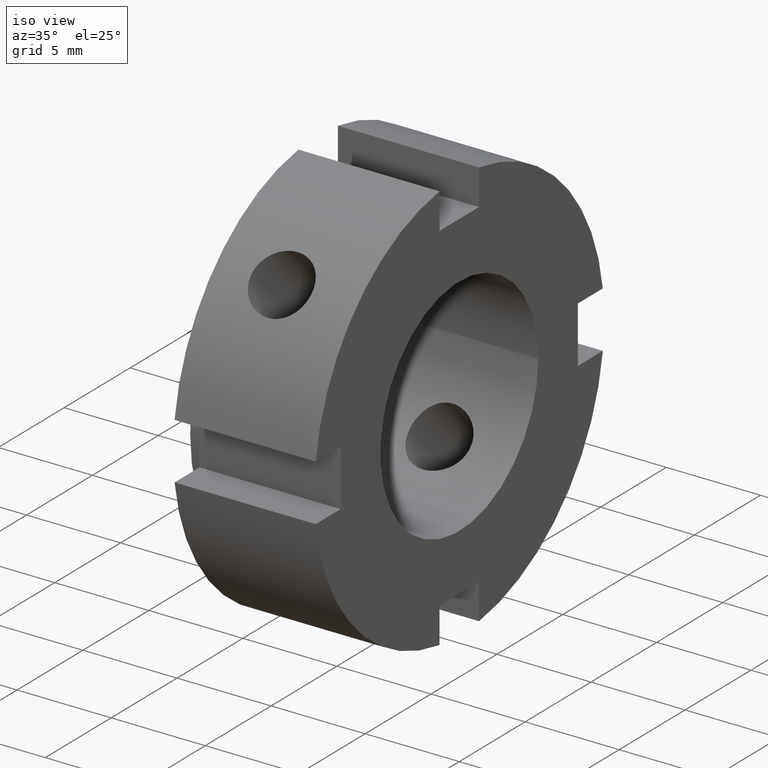
[diagram: clean part render]
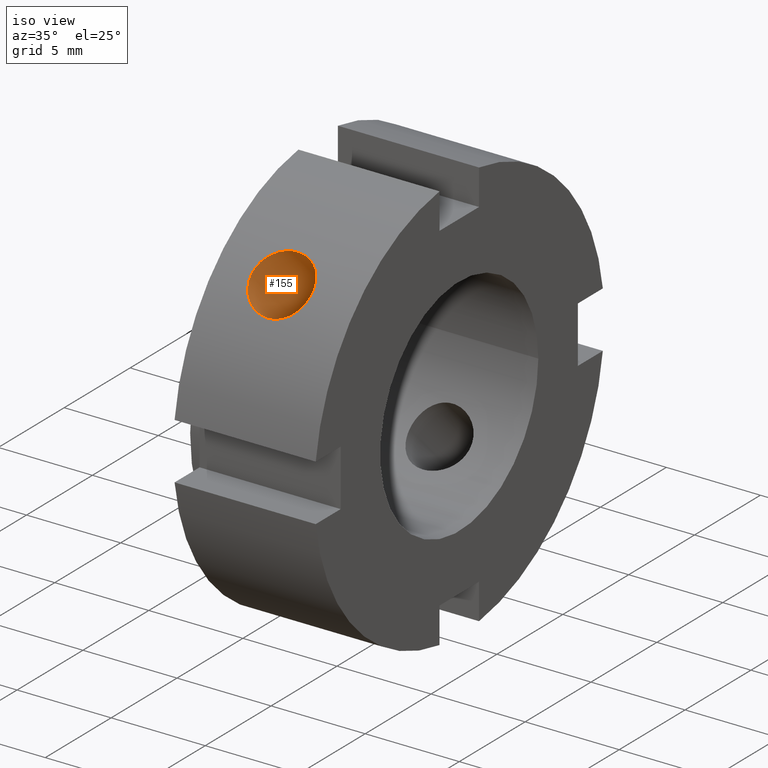
[diagram: same view with one face highlighted and labeled with its STEP entity id]
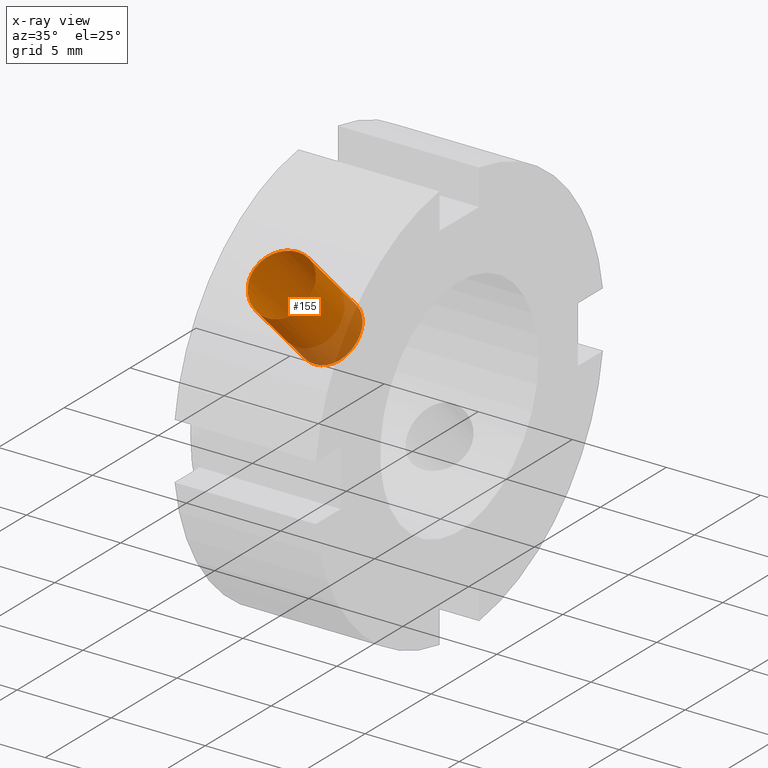
[diagram: x-ray of the same camera — body ghosted, the highlighted face saturated]
A machine part, iso view. The second image highlights one B-rep face of the part: STEP entity #155.
The next image is the same camera in x-ray: the body ghosted, the highlighted face saturated — about 21% of this face is hidden behind the body in this view.
In plain terms, the highlighted cylindrical surface (bore or boss wall) has radius 1.621 mm, axis along (0, -0.7071, 0.7071).
Its self-contained STEP definition (entity closure, byte-faithful):
#68=CARTESIAN_POINT('',(3.999999999999997,-22.516660498395392,22.516660498395396));
#69=DIRECTION('',(0.0,-0.707106781186547,0.707106781186548));
#70=DIRECTION('',(1.0,0.0,0.0));
#71=AXIS2_PLACEMENT_3D('',#68,#69,#70);
#72=CYLINDRICAL_SURFACE('',#71,1.621000000000000);
#73=CARTESIAN_POINT('',(3.999999999999997,-8.839475547570686,6.547035362963900));
#74=VERTEX_POINT('',#73);
#75=CARTESIAN_POINT('',(3.999999999999997,-8.839475547570686,6.547035362963900));
#76=CARTESIAN_POINT('',(3.796142769904900,-8.839475547570686,6.547035362963900));
#77=CARTESIAN_POINT('',(3.578903577574677,-8.815094253102171,6.580356519688689));
#78=CARTESIAN_POINT('',(3.179612484980892,-8.714136118925408,6.713479742443687));
#79=CARTESIAN_POINT('',(2.997534770452102,-8.637331490035944,6.813031413470040));
#80=CARTESIAN_POINT('',(2.710027378099478,-8.455333084321632,7.037629861303332));
#81=CARTESIAN_POINT('',(2.585322812457487,-8.337903377266315,7.177698352393069));
#82=CARTESIAN_POINT('',(2.419800965029881,-8.071517897913950,7.476000614545657));
#83=CARTESIAN_POINT('',(2.378999999999997,-7.922321083293664,7.634028102810378));
#84=CARTESIAN_POINT('',(2.378999999999997,-7.634028102810375,7.922321083293664));
#85=CARTESIAN_POINT('',(2.419800965029881,-7.476000614545653,8.071517897913953));
#86=CARTESIAN_POINT('',(2.585322812457488,-7.177698352393065,8.337903377266319));
#87=CARTESIAN_POINT('',(2.710027378099478,-7.037629861303331,8.455333084321634));
#88=CARTESIAN_POINT('',(2.997534770452102,-6.813031413470039,8.637331490035948));
#89=CARTESIAN_POINT('',(3.179612484980891,-6.713479742443685,8.714136118925412));
#90=CARTESIAN_POINT('',(3.578903577574677,-6.580356519688686,8.815094253102174));
#91=CARTESIAN_POINT('',(3.796142769904900,-6.547035362963899,8.839475547570688));
#92=CARTESIAN_POINT('',(4.203857230095094,-6.547035362963899,8.839475547570688));
#93=CARTESIAN_POINT('',(4.421096422425318,-6.580356519688686,8.815094253102174));
#94=CARTESIAN_POINT('',(4.820387515019104,-6.713479742443685,8.714136118925412));
#95=CARTESIAN_POINT('',(5.002465229547894,-6.813031413470039,8.637331490035948));
#96=CARTESIAN_POINT('',(5.289972621900516,-7.037629861303331,8.455333084321634));
#97=CARTESIAN_POINT('',(5.414677187542507,-7.177698352393066,8.337903377266319));
#98=CARTESIAN_POINT('',(5.580199034970114,-7.476000614545654,8.071517897913953));
#99=CARTESIAN_POINT('',(5.620999999999997,-7.634028102810375,7.922321083293664));
#100=CARTESIAN_POINT('',(5.620999999999997,-7.922321083293664,7.634028102810378));
#101=CARTESIAN_POINT('',(5.580199034970113,-8.071517897913951,7.476000614545656));
#102=CARTESIAN_POINT('',(5.414677187542508,-8.337903377266315,7.177698352393069));
#103=CARTESIAN_POINT('',(5.289972621900516,-8.455333084321632,7.037629861303332));
#104=CARTESIAN_POINT('',(5.002465229547893,-8.637331490035944,6.813031413470041));
#105=CARTESIAN_POINT('',(4.820387515019103,-8.714136118925408,6.713479742443687));
#106=CARTESIAN_POINT('',(4.421096422425317,-8.815094253102171,6.580356519688689));
#107=CARTESIAN_POINT('',(4.203857230095094,-8.839475547570686,6.547035362963900));
#108=CARTESIAN_POINT('',(3.999999999999997,-8.839475547570686,6.547035362963900));
#109=B_SPLINE_CURVE_WITH_KNOTS('',3,(#75,#76,#77,#78,#79,#80,#81,#82,#83,#84,#85,#86,#87,#88,#89,#90,#91,#92,#93,#94,#95,#96,#97,#98,#99,#100,#101,#102,#103,#104,#105,#106,#107,#108),.UNSPECIFIED.,.T.,.U.,(4,2,2,2,2,2,2,2,2,2,2,2,2,2,2,2,4),(0.0,0.061157169028529,0.122314338057058,0.183470514497522,0.244626690937986,0.305782867378450,0.366939043818914,0.428096212847443,0.489253381875972,0.550410550904501,0.611567719933030,0.672723896373494,0.733880072813958,0.795036249254422,0.856192425694887,0.917349594723415,0.978506763751944),.UNSPECIFIED.);
#110=EDGE_CURVE('',#74,#74,#109,.T.);
#111=ORIENTED_EDGE('',*,*,#110,.F.);
#112=EDGE_LOOP('',(#111));
#113=FACE_OUTER_BOUND('',#112,.T.);
#114=CARTESIAN_POINT('',(3.999999999999997,-5.231092122122688,2.938651937515902));
#115=VERTEX_POINT('',#114);
#116=CARTESIAN_POINT('',(3.999999999999996,-5.231092122122687,2.938651937515902));
#117=CARTESIAN_POINT('',(4.204656837932708,-5.231092122122687,2.938651937515902));
#118=CARTESIAN_POINT('',(4.422214958072740,-5.210515828807725,2.976213652590718));
#119=CARTESIAN_POINT('',(4.821267771985383,-5.123518944672560,3.123599893781188));
#120=CARTESIAN_POINT('',(5.002857040038760,-5.056647212474741,3.232901239618902));
#121=CARTESIAN_POINT('',(5.289555523837906,-4.893375600905684,3.475082512150400));
#122=CARTESIAN_POINT('',(5.414150183791429,-4.785836178459572,3.624365214205758));
#123=CARTESIAN_POINT('',(5.579899826618322,-4.533035214241452,3.935967845011837));
#124=CARTESIAN_POINT('',(5.620999999999997,-4.387327043984347,4.097954330254225));
#125=CARTESIAN_POINT('',(5.620999999999997,-4.097954330254225,4.387327043984348));
#126=CARTESIAN_POINT('',(5.579899826618323,-3.935967845011837,4.533035214241452));
#127=CARTESIAN_POINT('',(5.414150183791431,-3.624365214205757,4.785836178459574));
#128=CARTESIAN_POINT('',(5.289555523837906,-3.475082512150399,4.893375600905685));
#129=CARTESIAN_POINT('',(5.002857040038760,-3.232901239618901,5.056647212474742));
#130=CARTESIAN_POINT('',(4.821267771985383,-3.123599893781186,5.123518944672561));
#131=CARTESIAN_POINT('',(4.422214958072740,-2.976213652590716,5.210515828807726));
#132=CARTESIAN_POINT('',(4.204656837932709,-2.938651937515901,5.231092122122689));
#133=CARTESIAN_POINT('',(3.795343162067285,-2.938651937515901,5.231092122122689));
#134=CARTESIAN_POINT('',(3.577785041927254,-2.976213652590716,5.210515828807726));
#135=CARTESIAN_POINT('',(3.178732228014611,-3.123599893781186,5.123518944672561));
#136=CARTESIAN_POINT('',(2.997142959961234,-3.232901239618901,5.056647212474742));
#137=CARTESIAN_POINT('',(2.710444476162088,-3.475082512150399,4.893375600905685));
#138=CARTESIAN_POINT('',(2.585849816208564,-3.624365214205758,4.785836178459574));
#139=CARTESIAN_POINT('',(2.420100173381671,-3.935967845011837,4.533035214241453));
#140=CARTESIAN_POINT('',(2.378999999999997,-4.097954330254225,4.387327043984348));
#141=CARTESIAN_POINT('',(2.378999999999997,-4.387327043984347,4.097954330254225));
#142=CARTESIAN_POINT('',(2.420100173381672,-4.533035214241451,3.935967845011838));
#143=CARTESIAN_POINT('',(2.585849816208565,-4.785836178459572,3.624365214205759));
#144=CARTESIAN_POINT('',(2.710444476162088,-4.893375600905684,3.475082512150400));
#145=CARTESIAN_POINT('',(2.997142959961234,-5.056647212474741,3.232901239618902));
#146=CARTESIAN_POINT('',(3.178732228014611,-5.123518944672561,3.123599893781186));
#147=CARTESIAN_POINT('',(3.577785041927255,-5.210515828807725,2.976213652590716));
#148=CARTESIAN_POINT('',(3.795343162067285,-5.231092122122687,2.938651937515902));
#149=CARTESIAN_POINT('',(3.999999999999997,-5.231092122122687,2.938651937515902));
#150=B_SPLINE_CURVE_WITH_KNOTS('',3,(#116,#117,#118,#119,#120,#121,#122,#123,#124,#125,#126,#127,#128,#129,#130,#131,#132,#133,#134,#135,#136,#137,#138,#139,#140,#141,#142,#143,#144,#145,#146,#147,#148,#149),.UNSPECIFIED.,.T.,.U.,(4,2,2,2,2,2,2,2,2,2,2,2,2,2,2,2,4),(0.0,0.061397051379814,0.122794102759627,0.184179325210304,0.245564547660981,0.306949770111658,0.368334992562335,0.429732043942149,0.491129095321962,0.552526146701776,0.613923198081590,0.675308420532267,0.736693642982944,0.798078865433621,0.859464087884298,0.920861139264111,0.982258190643925),.UNSPECIFIED.);
#151=EDGE_CURVE('',#115,#115,#150,.T.);
#152=ORIENTED_EDGE('',*,*,#151,.F.);
#153=EDGE_LOOP('',(#152));
#154=FACE_BOUND('',#153,.T.);
#155=ADVANCED_FACE('',(#113,#154),#72,.F.);